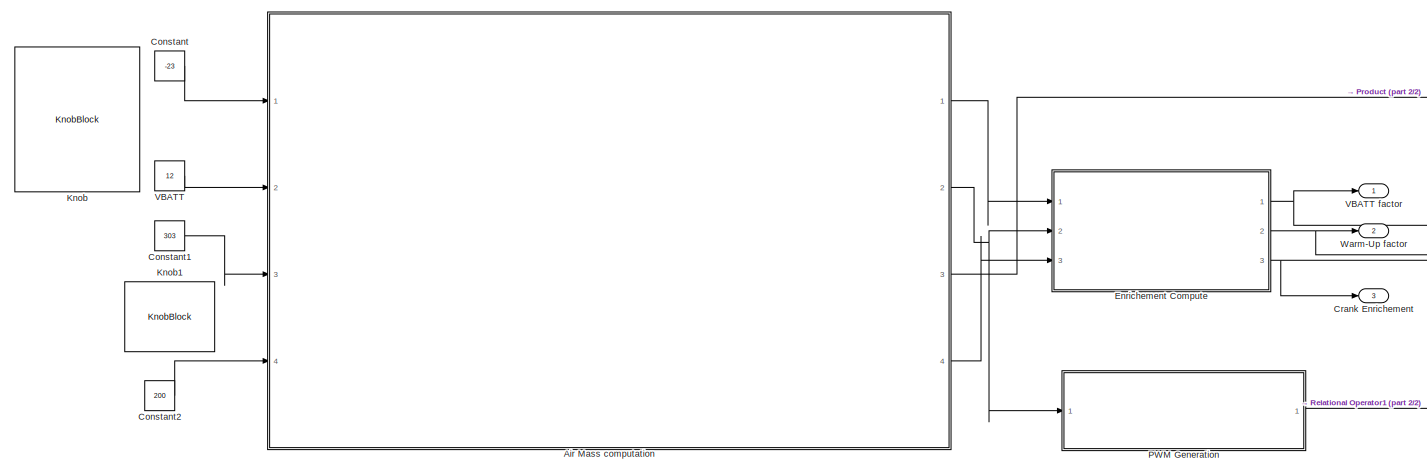
[diagram: root canvas - part 1/2, most of the canvas]
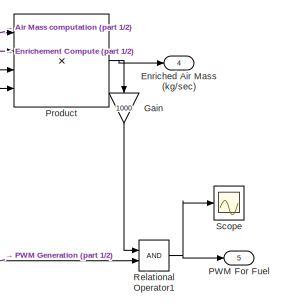
[diagram: root canvas - part 2/2, middle right region]
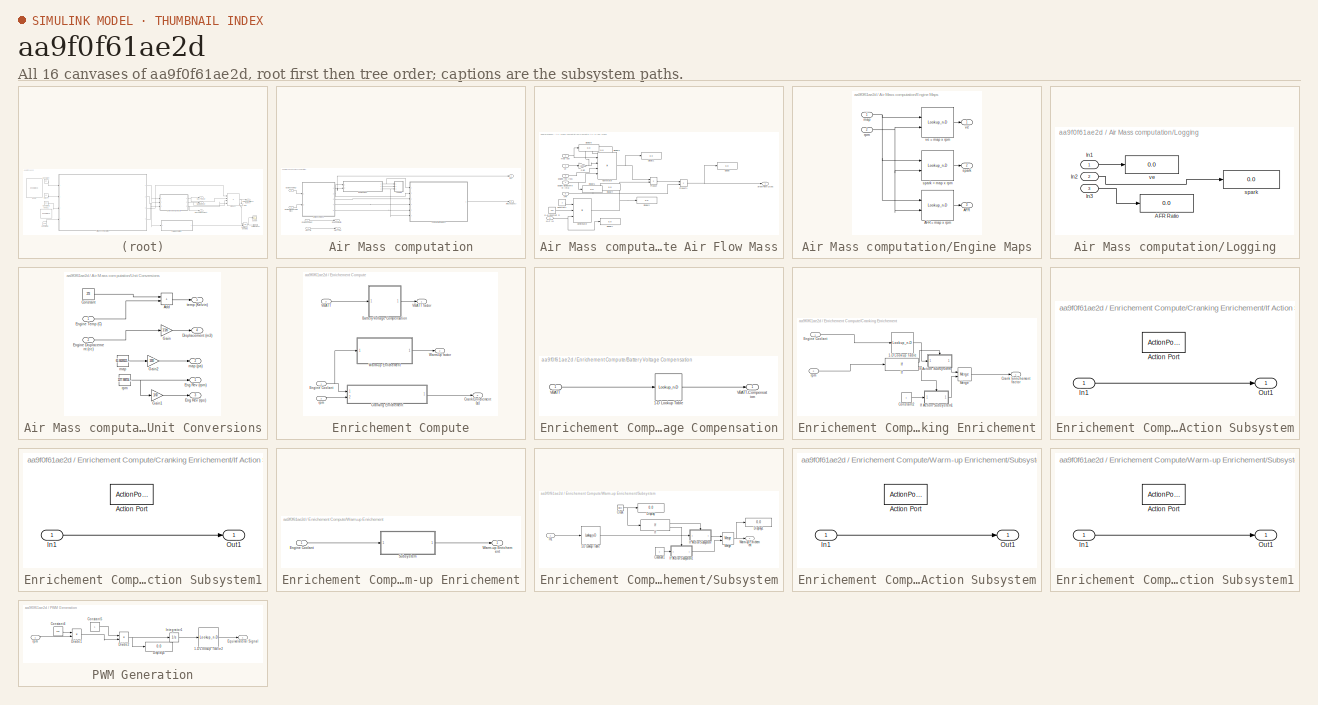
[diagram: thumbnail index - all 16 canvases of the model, root first then tree order]
MODEL slx_aa9f0f61ae2d
KIND model
CONFIG AbsTol = auto
CONFIG EnableMultiTasking = off
CONFIG FixedStep = 1
CONFIG MaxStep = 0.0001
CONFIG MinStep = auto
CONFIG PostLoadFcn = data1=xlsread('performancemaps','VE'); \nrpm1=data1(1,2:end); \nmap1=data1(2:end,1); \nve=data1(2:end,2:end);\ndata2=xlsread('performancemaps','Spark'); \nrpm2=data2(1,2:end); \nmap2=data2(2:end,1); \nspark=data2(2:end,2:end);\ndata3=xlsread('performancemaps','AFR'); \nrpm3=data3(1,2:end); \nmap3=data3(2:end,1); \nAFR=data3(2:end,2:end); 
CONFIG RelTol = 1e-3
CONFIG SampleTimeConstraint = Unconstrained
CONFIG Solver = VariableStepAuto
CONFIG SolverName = VariableStepAuto
CONFIG StartTime = 0.0
CONFIG StopTime = 2
BLOCK [SubSystem] Air Mass computation
  Ports = [4, 4]
  RequestExecContextInheritance = off
BLOCK [Outport] Air Mass computation/Air Mass (kg//sec)
  Port = 3
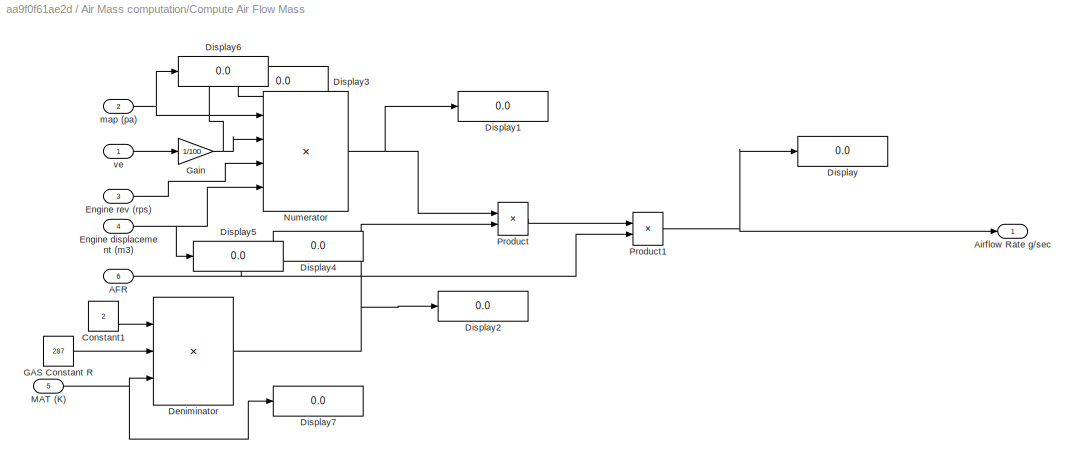
BLOCK [SubSystem] Air Mass computation/Compute Air Flow Mass
  Ports = [6, 1]
  RequestExecContextInheritance = off
BLOCK [Inport] Air Mass computation/Compute Air Flow Mass/AFR
  Port = 6
BLOCK [Outport] Air Mass computation/Compute Air Flow Mass/Airflow Rate g//sec
BLOCK [Constant] Air Mass computation/Compute Air Flow Mass/Constant1
  Value = 2
BLOCK [Product] Air Mass computation/Compute Air Flow Mass/Deniminator
  Inputs = ***
  Ports = [3, 1]
BLOCK [Display] Air Mass computation/Compute Air Flow Mass/Display
  Decimation = 1
  Ports = [1]
BLOCK [Display] Air Mass computation/Compute Air Flow Mass/Display1
  Decimation = 1
  Ports = [1]
BLOCK [Display] Air Mass computation/Compute Air Flow Mass/Display2
  Decimation = 1
  Ports = [1]
BLOCK [Display] Air Mass computation/Compute Air Flow Mass/Display3
  Decimation = 1
  Ports = [1]
BLOCK [Display] Air Mass computation/Compute Air Flow Mass/Display4
  Decimation = 1
  Ports = [1]
BLOCK [Display] Air Mass computation/Compute Air Flow Mass/Display5
  Decimation = 1
  Ports = [1]
BLOCK [Display] Air Mass computation/Compute Air Flow Mass/Display6
  Decimation = 1
  Ports = [1]
BLOCK [Display] Air Mass computation/Compute Air Flow Mass/Display7
  Decimation = 1
  Ports = [1]
BLOCK [Inport] Air Mass computation/Compute Air Flow Mass/Engine displacement (m3)
  Port = 4
BLOCK [Inport] Air Mass computation/Compute Air Flow Mass/Engine rev (rps)
  Port = 3
BLOCK [Constant] Air Mass computation/Compute Air Flow Mass/GAS Constant R
  Value = 287
BLOCK [Gain] Air Mass computation/Compute Air Flow Mass/Gain
  Gain = 1/100
BLOCK [Inport] Air Mass computation/Compute Air Flow Mass/MAT (K)
  Port = 5
BLOCK [Product] Air Mass computation/Compute Air Flow Mass/Numerator
  Inputs = ****
  Ports = [4, 1]
BLOCK [Product] Air Mass computation/Compute Air Flow Mass/Product
  Inputs = */
  Ports = [2, 1]
BLOCK [Product] Air Mass computation/Compute Air Flow Mass/Product1
  Inputs = */
  Ports = [2, 1]
BLOCK [Inport] Air Mass computation/Compute Air Flow Mass/map (pa)
  Port = 2
BLOCK [Inport] Air Mass computation/Compute Air Flow Mass/ve
BLOCK [Outport] Air Mass computation/Eng Coolant (C)
BLOCK [Inport] Air Mass computation/Engine Coolant
BLOCK [Inport] Air Mass computation/Engine Displacement(cc)
  Port = 4
BLOCK [SubSystem] Air Mass computation/Engine Maps
  Ports = [2, 3]
  RequestExecContextInheritance = off
BLOCK [Outport] Air Mass computation/Engine Maps/AFR
  Port = 3
BLOCK [Lookup_n-D] Air Mass computation/Engine Maps/AFR =  map x rpm
  BreakpointsForDimension1 = map1
  BreakpointsForDimension2 = rpm1
  InternalRulePriority = Speed
  Ports = [2, 1]
  RndMeth = Simplest
  Table = AFR
BLOCK [Inport] Air Mass computation/Engine Maps/map
BLOCK [Inport] Air Mass computation/Engine Maps/rpm
  Port = 2
BLOCK [Outport] Air Mass computation/Engine Maps/spark
  Port = 2
BLOCK [Lookup_n-D] Air Mass computation/Engine Maps/spark =  map x rpm
  BreakpointsForDimension1 = map1
  BreakpointsForDimension2 = rpm1
  InternalRulePriority = Speed
  Ports = [2, 1]
  RndMeth = Simplest
  Table = spark
BLOCK [Outport] Air Mass computation/Engine Maps/ve
BLOCK [Lookup_n-D] Air Mass computation/Engine Maps/ve =  map x rpm
  BreakpointsForDimension1 = map1
  BreakpointsForDimension2 = rpm1
  InternalRulePriority = Speed
  Ports = [2, 1]
  RndMeth = Simplest
  Table = ve
BLOCK [Inport] Air Mass computation/Engine Temp(C)
  Port = 3
BLOCK [SubSystem] Air Mass computation/Logging
  Ports = [3]
  RequestExecContextInheritance = off
BLOCK [Display] Air Mass computation/Logging/AFR Ratio
  Decimation = 1
  Ports = [1]
BLOCK [Inport] Air Mass computation/Logging/In1
BLOCK [Inport] Air Mass computation/Logging/In2
  Port = 2
BLOCK [Inport] Air Mass computation/Logging/In3
  Port = 3
BLOCK [Display] Air Mass computation/Logging/spark
  Decimation = 1
  Ports = [1]
BLOCK [Display] Air Mass computation/Logging/ve
  Decimation = 1
  Ports = [1]
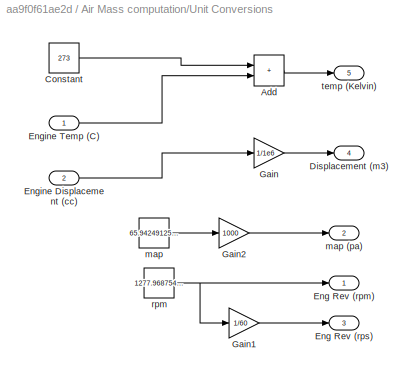
BLOCK [SubSystem] Air Mass computation/Unit Conversions
  Ports = [2, 5]
  RequestExecContextInheritance = off
BLOCK [Sum] Air Mass computation/Unit Conversions/Add
  IconShape = rectangular
  Ports = [2, 1]
BLOCK [Constant] Air Mass computation/Unit Conversions/Constant
  Value = 273
BLOCK [Outport] Air Mass computation/Unit Conversions/Displacement (m3)
  Port = 4
BLOCK [Outport] Air Mass computation/Unit Conversions/Eng Rev (rpm)
BLOCK [Outport] Air Mass computation/Unit Conversions/Eng Rev (rps)
  Port = 3
BLOCK [Inport] Air Mass computation/Unit Conversions/Engine Displacement (cc)
  Port = 2
BLOCK [Inport] Air Mass computation/Unit Conversions/Engine Temp (C)
BLOCK [Gain] Air Mass computation/Unit Conversions/Gain
  Gain = 1/1e6
BLOCK [Gain] Air Mass computation/Unit Conversions/Gain1
  Gain = 1/60
BLOCK [Gain] Air Mass computation/Unit Conversions/Gain2
  Gain = 1000
BLOCK [Constant] Air Mass computation/Unit Conversions/map
  Value = 65.9424912516276
BLOCK [Outport] Air Mass computation/Unit Conversions/map (pa)
  Port = 2
BLOCK [Constant] Air Mass computation/Unit Conversions/rpm
  Value = 1277.968754907615
BLOCK [Outport] Air Mass computation/Unit Conversions/temp (Kelvin)
  Port = 5
BLOCK [Inport] Air Mass computation/VBATT-in
  Port = 2
BLOCK [Outport] Air Mass computation/VBATT-out
  Port = 4
BLOCK [Outport] Air Mass computation/rpm
  Port = 2
BLOCK [Constant] Constant
  Value = -23
BLOCK [Constant] Constant1
  Value = 303
BLOCK [Constant] Constant2
  Value = 200
BLOCK [Outport] Crank Enrichement
  Port = 3
BLOCK [Outport] Enriched Air Mass (kg//sec) 
  Port = 4
BLOCK [SubSystem] Enrichement Compute
  Ports = [3, 3]
  RequestExecContextInheritance = off
BLOCK [SubSystem] Enrichement Compute/Battery Voltage Compensation
  Ports = [1, 1]
  RequestExecContextInheritance = off
BLOCK [Lookup_n-D] Enrichement Compute/Battery Voltage Compensation/1-D Lookup Table
  BreakpointsForDimension1 = [7,10,12,15]
  InternalRulePriority = Speed
  NumberOfTableDimensions = 1
  Ports = [1, 1]
  RndMeth = Simplest
  Table = [ 1.3,1.2, 1.0 ,0.9]
BLOCK [Inport] Enrichement Compute/Battery Voltage Compensation/VBATT
BLOCK [Outport] Enrichement Compute/Battery Voltage Compensation/VBATT-Compensation
BLOCK [Outport] Enrichement Compute/Crank Enrichement(g)
  Port = 3
BLOCK [SubSystem] Enrichement Compute/Cranking Enrichement
  Ports = [2, 1]
  RequestExecContextInheritance = off
BLOCK [Lookup_n-D] Enrichement Compute/Cranking Enrichement/1-D Lookup Table
  BreakpointsForDimension1 = [-40,-20,-5,15,35,50,70,90]
  InternalRulePriority = Speed
  NumberOfTableDimensions = 1
  Ports = [1, 1]
  RndMeth = Simplest
  Table = [1.4,1.25,1.15,1.1,1,1,1,1]
BLOCK [Constant] Enrichement Compute/Cranking Enrichement/Constant2
BLOCK [Outport] Enrichement Compute/Cranking Enrichement/Crank Enrichement factor
BLOCK [Inport] Enrichement Compute/Cranking Enrichement/Engine Coolant
BLOCK [If] Enrichement Compute/Cranking Enrichement/If
  IfExpression = u1 > 100 & u1 < 800
  Ports = [1, 2]
BLOCK [SubSystem] Enrichement Compute/Cranking Enrichement/If Action Subsystem
  Ports = [1, 1, 0, 0, 0, 0, 0, 1]
  RequestExecContextInheritance = off
  TreatAsAtomicUnit = on
BLOCK [ActionPort] Enrichement Compute/Cranking Enrichement/If Action Subsystem/Action Port
  ActionPortLabel = if(u1 > 100 & u1 < 800)
BLOCK [Inport] Enrichement Compute/Cranking Enrichement/If Action Subsystem/In1
BLOCK [Outport] Enrichement Compute/Cranking Enrichement/If Action Subsystem/Out1
BLOCK [SubSystem] Enrichement Compute/Cranking Enrichement/If Action Subsystem1
  Ports = [1, 1, 0, 0, 0, 0, 0, 1]
  RequestExecContextInheritance = off
  TreatAsAtomicUnit = on
BLOCK [ActionPort] Enrichement Compute/Cranking Enrichement/If Action Subsystem1/Action Port
  ActionPortLabel = else
BLOCK [Inport] Enrichement Compute/Cranking Enrichement/If Action Subsystem1/In1
BLOCK [Outport] Enrichement Compute/Cranking Enrichement/If Action Subsystem1/Out1
BLOCK [Merge] Enrichement Compute/Cranking Enrichement/Merge
  Ports = [2, 1]
BLOCK [Inport] Enrichement Compute/Cranking Enrichement/rpm
  Port = 2
BLOCK [Inport] Enrichement Compute/Engine Coolant
BLOCK [Inport] Enrichement Compute/VBATT
  Port = 3
BLOCK [Outport] Enrichement Compute/VBATT factor
BLOCK [Outport] Enrichement Compute/Warm-Up factor
  Port = 2
BLOCK [SubSystem] Enrichement Compute/Warm-up Enrichement
  Ports = [1, 1]
  RequestExecContextInheritance = off
BLOCK [Inport] Enrichement Compute/Warm-up Enrichement/Engine Coolant
BLOCK [SubSystem] Enrichement Compute/Warm-up Enrichement/Subsystem
  Ports = [1, 1]
  RequestExecContextInheritance = off
BLOCK [Lookup_n-D] Enrichement Compute/Warm-up Enrichement/Subsystem/1-D Lookup Table
  BreakpointsForDimension1 = [-40,-20,-5,15,35,50,100]
  InternalRulePriority = Speed
  NumberOfTableDimensions = 1
  Ports = [1, 1]
  RndMeth = Simplest
  Table = [1.6, 1.35,1.25,1.25,1.15,1,1]
BLOCK [Clock] Enrichement Compute/Warm-up Enrichement/Subsystem/Clock
  Decimation = 2
  DisplayTime = on
BLOCK [Constant] Enrichement Compute/Warm-up Enrichement/Subsystem/Constant1
BLOCK [Display] Enrichement Compute/Warm-up Enrichement/Subsystem/Display
  Decimation = 2
  Format = long
  Ports = [1]
BLOCK [Display] Enrichement Compute/Warm-up Enrichement/Subsystem/Display1
  Decimation = 2
  Format = long
  Ports = [1]
BLOCK [If] Enrichement Compute/Warm-up Enrichement/Subsystem/If
  IfExpression = u1 < 15000
  Ports = [1, 2]
BLOCK [SubSystem] Enrichement Compute/Warm-up Enrichement/Subsystem/If Action Subsystem
  Ports = [1, 1, 0, 0, 0, 0, 0, 1]
  RequestExecContextInheritance = off
  TreatAsAtomicUnit = on
BLOCK [ActionPort] Enrichement Compute/Warm-up Enrichement/Subsystem/If Action Subsystem/Action Port
  ActionPortLabel = if(u1 < 15000)
BLOCK [Inport] Enrichement Compute/Warm-up Enrichement/Subsystem/If Action Subsystem/In1
BLOCK [Outport] Enrichement Compute/Warm-up Enrichement/Subsystem/If Action Subsystem/Out1
BLOCK [SubSystem] Enrichement Compute/Warm-up Enrichement/Subsystem/If Action Subsystem1
  Ports = [1, 1, 0, 0, 0, 0, 0, 1]
  RequestExecContextInheritance = off
  TreatAsAtomicUnit = on
BLOCK [ActionPort] Enrichement Compute/Warm-up Enrichement/Subsystem/If Action Subsystem1/Action Port
  ActionPortLabel = else
BLOCK [Inport] Enrichement Compute/Warm-up Enrichement/Subsystem/If Action Subsystem1/In1
BLOCK [Outport] Enrichement Compute/Warm-up Enrichement/Subsystem/If Action Subsystem1/Out1
BLOCK [Inport] Enrichement Compute/Warm-up Enrichement/Subsystem/In1
BLOCK [Merge] Enrichement Compute/Warm-up Enrichement/Subsystem/Merge
  Ports = [2, 1]
BLOCK [Outport] Enrichement Compute/Warm-up Enrichement/Subsystem/Warm-up Enrichement
BLOCK [Outport] Enrichement Compute/Warm-up Enrichement/Warm-up Enrichement
BLOCK [Inport] Enrichement Compute/rpm
  Port = 2
BLOCK [Gain] Gain
  Gain = 1000
  NameLocation = left
BLOCK [KnobBlock] Knob
  ScaleMax = 10000
BLOCK [KnobBlock] Knob1
  ScaleMax = 101
  ScaleMin = 25
BLOCK [Outport] PWM For Fuel
  Port = 5
BLOCK [SubSystem] PWM Generation
  Ports = [1, 1]
  RequestExecContextInheritance = off
BLOCK [Lookup_n-D] PWM Generation/1-D Lookup Table2
  BreakpointsForDimension1 = [0,0.5,1]
  InternalRulePriority = Speed
  NumberOfTableDimensions = 1
  Ports = [1, 1]
  RndMeth = Simplest
  Table = [0,1,0]
BLOCK [Constant] PWM Generation/Constant4
  Value = 120
BLOCK [Constant] PWM Generation/Constant5
BLOCK [Display] PWM Generation/Display5
  Decimation = 1
  Ports = [1]
BLOCK [Product] PWM Generation/Divide1
  Inputs = */
  Ports = [2, 1]
BLOCK [Product] PWM Generation/Divide2
  Inputs = */
  Ports = [2, 1]
BLOCK [Outport] PWM Generation/Equivalateral Signal
BLOCK [Integrator] PWM Generation/Integrator1
  Ports = [1, 1]
  WrapState = on
  WrappedStateLowerValue = 0
  WrappedStateUpperValue = 1
BLOCK [Inport] PWM Generation/rpm
BLOCK [Product] Product
  Inputs = 4
  Ports = [4, 1]
BLOCK [RelationalOperator] Relational Operator1
  InputSameDT = off
  OutDataTypeStr = boolean
  Ports = [2, 1]
  RndMeth = Simplest
BLOCK [Scope] Scope
  Floating = off
  NumInputPorts = 1
  Ports = [1]
  ScopeSpecificationString = Simulink.scopes.TimeScopeBlockCfg('CurrentConfiguration', extmgr.ConfigurationSet(extmgr.Configuration('Core','General UI',true),extmgr.Configuration('Core','Source UI',true),extmgr.Configuration('Sources','WiredSimulink',true,'DataLoggingVariableName','ScopeData1'),extmgr.Configuration('Visuals','Time Domain',true,'SerializedDisplays',{struct('MinYLimReal','0.9999999924','MaxYLimReal','1.00000000...<+1511ch>
BLOCK [Constant] VBATT
  Value = 12
BLOCK [Outport] VBATT factor
BLOCK [Outport] Warm-Up factor
  Port = 2
NET Air Mass computation/Compute Air Flow Mass/AFR:1 -> Air Mass computation/Compute Air Flow Mass/Display4:1, Air Mass computation/Compute Air Flow Mass/Product1:2
LINE Air Mass computation/Compute Air Flow Mass/Constant1:1 -> Air Mass computation/Compute Air Flow Mass/Deniminator:1
NET Air Mass computation/Compute Air Flow Mass/Deniminator:1 -> Air Mass computation/Compute Air Flow Mass/Display2:1, Air Mass computation/Compute Air Flow Mass/Product:2
NET Air Mass computation/Compute Air Flow Mass/Engine displacement (m3):1 -> Air Mass computation/Compute Air Flow Mass/Display5:1, Air Mass computation/Compute Air Flow Mass/Numerator:4
LINE Air Mass computation/Compute Air Flow Mass/Engine rev (rps):1 -> Air Mass computation/Compute Air Flow Mass/Numerator:3
LINE Air Mass computation/Compute Air Flow Mass/GAS Constant R:1 -> Air Mass computation/Compute Air Flow Mass/Deniminator:2
NET Air Mass computation/Compute Air Flow Mass/Gain:1 -> Air Mass computation/Compute Air Flow Mass/Display3:1, Air Mass computation/Compute Air Flow Mass/Numerator:2
NET Air Mass computation/Compute Air Flow Mass/MAT (K):1 -> Air Mass computation/Compute Air Flow Mass/Deniminator:3, Air Mass computation/Compute Air Flow Mass/Display7:1
NET Air Mass computation/Compute Air Flow Mass/Numerator:1 -> Air Mass computation/Compute Air Flow Mass/Display1:1, Air Mass computation/Compute Air Flow Mass/Product:1
NET Air Mass computation/Compute Air Flow Mass/Product1:1 -> Air Mass computation/Compute Air Flow Mass/Airflow Rate g//sec:1, Air Mass computation/Compute Air Flow Mass/Display:1
LINE Air Mass computation/Compute Air Flow Mass/Product:1 -> Air Mass computation/Compute Air Flow Mass/Product1:1
NET Air Mass computation/Compute Air Flow Mass/map (pa):1 -> Air Mass computation/Compute Air Flow Mass/Display6:1, Air Mass computation/Compute Air Flow Mass/Numerator:1
LINE Air Mass computation/Compute Air Flow Mass/ve:1 -> Air Mass computation/Compute Air Flow Mass/Gain:1
LINE Air Mass computation/Compute Air Flow Mass:1 -> Air Mass computation/Air Mass (kg//sec):1
LINE Air Mass computation/Engine Coolant:1 -> Air Mass computation/Eng Coolant (C):1
LINE Air Mass computation/Engine Displacement(cc):1 -> Air Mass computation/Unit Conversions:2
LINE Air Mass computation/Engine Maps/AFR =  map x rpm:1 -> Air Mass computation/Engine Maps/AFR:1
NET Air Mass computation/Engine Maps/map:1 -> Air Mass computation/Engine Maps/AFR =  map x rpm:1, Air Mass computation/Engine Maps/spark =  map x rpm:1, Air Mass computation/Engine Maps/ve =  map x rpm:1
NET Air Mass computation/Engine Maps/rpm:1 -> Air Mass computation/Engine Maps/AFR =  map x rpm:2, Air Mass computation/Engine Maps/spark =  map x rpm:2, Air Mass computation/Engine Maps/ve =  map x rpm:2
LINE Air Mass computation/Engine Maps/spark =  map x rpm:1 -> Air Mass computation/Engine Maps/spark:1
LINE Air Mass computation/Engine Maps/ve =  map x rpm:1 -> Air Mass computation/Engine Maps/ve:1
NET Air Mass computation/Engine Maps:1 -> Air Mass computation/Compute Air Flow Mass:1, Air Mass computation/Logging:1
LINE Air Mass computation/Engine Maps:2 -> Air Mass computation/Logging:2
NET Air Mass computation/Engine Maps:3 -> Air Mass computation/Compute Air Flow Mass:6, Air Mass computation/Logging:3
LINE Air Mass computation/Engine Temp(C):1 -> Air Mass computation/Unit Conversions:1
LINE Air Mass computation/Logging/In1:1 -> Air Mass computation/Logging/ve:1
LINE Air Mass computation/Logging/In2:1 -> Air Mass computation/Logging/spark:1
LINE Air Mass computation/Logging/In3:1 -> Air Mass computation/Logging/AFR Ratio:1
LINE Air Mass computation/Unit Conversions/Add:1 -> Air Mass computation/Unit Conversions/temp (Kelvin):1
LINE Air Mass computation/Unit Conversions/Constant:1 -> Air Mass computation/Unit Conversions/Add:1
LINE Air Mass computation/Unit Conversions/Engine Displacement (cc):1 -> Air Mass computation/Unit Conversions/Gain:1
LINE Air Mass computation/Unit Conversions/Engine Temp (C):1 -> Air Mass computation/Unit Conversions/Add:2
LINE Air Mass computation/Unit Conversions/Gain1:1 -> Air Mass computation/Unit Conversions/Eng Rev (rps):1
LINE Air Mass computation/Unit Conversions/Gain2:1 -> Air Mass computation/Unit Conversions/map (pa):1
LINE Air Mass computation/Unit Conversions/Gain:1 -> Air Mass computation/Unit Conversions/Displacement (m3):1
LINE Air Mass computation/Unit Conversions/map:1 -> Air Mass computation/Unit Conversions/Gain2:1
NET Air Mass computation/Unit Conversions/rpm:1 -> Air Mass computation/Unit Conversions/Eng Rev (rpm):1, Air Mass computation/Unit Conversions/Gain1:1
NET Air Mass computation/Unit Conversions:1 -> Air Mass computation/Engine Maps:2, Air Mass computation/rpm:1
NET Air Mass computation/Unit Conversions:2 -> Air Mass computation/Compute Air Flow Mass:2, Air Mass computation/Engine Maps:1
LINE Air Mass computation/Unit Conversions:3 -> Air Mass computation/Compute Air Flow Mass:3
LINE Air Mass computation/Unit Conversions:4 -> Air Mass computation/Compute Air Flow Mass:4
LINE Air Mass computation/Unit Conversions:5 -> Air Mass computation/Compute Air Flow Mass:5
LINE Air Mass computation/VBATT-in:1 -> Air Mass computation/VBATT-out:1
LINE Air Mass computation:1 -> Enrichement Compute:1
NET Air Mass computation:2 -> Enrichement Compute:2, PWM Generation:1
LINE Air Mass computation:3 -> Product:1
LINE Air Mass computation:4 -> Enrichement Compute:3
LINE Constant1:1 -> Air Mass computation:3
LINE Constant2:1 -> Air Mass computation:4
LINE Constant:1 -> Air Mass computation:1
LINE Enrichement Compute/Battery Voltage Compensation/1-D Lookup Table:1 -> Enrichement Compute/Battery Voltage Compensation/VBATT-Compensation:1
LINE Enrichement Compute/Battery Voltage Compensation/VBATT:1 -> Enrichement Compute/Battery Voltage Compensation/1-D Lookup Table:1
LINE Enrichement Compute/Battery Voltage Compensation:1 -> Enrichement Compute/VBATT factor:1
LINE Enrichement Compute/Cranking Enrichement/1-D Lookup Table:1 -> Enrichement Compute/Cranking Enrichement/If Action Subsystem:1
LINE Enrichement Compute/Cranking Enrichement/Constant2:1 -> Enrichement Compute/Cranking Enrichement/If Action Subsystem1:1
LINE Enrichement Compute/Cranking Enrichement/Engine Coolant:1 -> Enrichement Compute/Cranking Enrichement/1-D Lookup Table:1
LINE Enrichement Compute/Cranking Enrichement/If Action Subsystem/In1:1 -> Enrichement Compute/Cranking Enrichement/If Action Subsystem/Out1:1
LINE Enrichement Compute/Cranking Enrichement/If Action Subsystem1/In1:1 -> Enrichement Compute/Cranking Enrichement/If Action Subsystem1/Out1:1
LINE Enrichement Compute/Cranking Enrichement/If Action Subsystem1:1 -> Enrichement Compute/Cranking Enrichement/Merge:2
LINE Enrichement Compute/Cranking Enrichement/If Action Subsystem:1 -> Enrichement Compute/Cranking Enrichement/Merge:1
LINE Enrichement Compute/Cranking Enrichement/If:1 -> Enrichement Compute/Cranking Enrichement/If Action Subsystem:ifaction
LINE Enrichement Compute/Cranking Enrichement/If:2 -> Enrichement Compute/Cranking Enrichement/If Action Subsystem1:ifaction
LINE Enrichement Compute/Cranking Enrichement/Merge:1 -> Enrichement Compute/Cranking Enrichement/Crank Enrichement factor:1
LINE Enrichement Compute/Cranking Enrichement/rpm:1 -> Enrichement Compute/Cranking Enrichement/If:1
LINE Enrichement Compute/Cranking Enrichement:1 -> Enrichement Compute/Crank Enrichement(g):1
NET Enrichement Compute/Engine Coolant:1 -> Enrichement Compute/Cranking Enrichement:1, Enrichement Compute/Warm-up Enrichement:1
LINE Enrichement Compute/VBATT:1 -> Enrichement Compute/Battery Voltage Compensation:1
LINE Enrichement Compute/Warm-up Enrichement/Engine Coolant:1 -> Enrichement Compute/Warm-up Enrichement/Subsystem:1
LINE Enrichement Compute/Warm-up Enrichement/Subsystem/1-D Lookup Table:1 -> Enrichement Compute/Warm-up Enrichement/Subsystem/If Action Subsystem:1
NET Enrichement Compute/Warm-up Enrichement/Subsystem/Clock:1 -> Enrichement Compute/Warm-up Enrichement/Subsystem/Display:1, Enrichement Compute/Warm-up Enrichement/Subsystem/If:1
LINE Enrichement Compute/Warm-up Enrichement/Subsystem/Constant1:1 -> Enrichement Compute/Warm-up Enrichement/Subsystem/If Action Subsystem1:1
LINE Enrichement Compute/Warm-up Enrichement/Subsystem/If Action Subsystem/In1:1 -> Enrichement Compute/Warm-up Enrichement/Subsystem/If Action Subsystem/Out1:1
LINE Enrichement Compute/Warm-up Enrichement/Subsystem/If Action Subsystem1/In1:1 -> Enrichement Compute/Warm-up Enrichement/Subsystem/If Action Subsystem1/Out1:1
LINE Enrichement Compute/Warm-up Enrichement/Subsystem/If Action Subsystem1:1 -> Enrichement Compute/Warm-up Enrichement/Subsystem/Merge:2
LINE Enrichement Compute/Warm-up Enrichement/Subsystem/If Action Subsystem:1 -> Enrichement Compute/Warm-up Enrichement/Subsystem/Merge:1
LINE Enrichement Compute/Warm-up Enrichement/Subsystem/If:1 -> Enrichement Compute/Warm-up Enrichement/Subsystem/If Action Subsystem:ifaction
LINE Enrichement Compute/Warm-up Enrichement/Subsystem/If:2 -> Enrichement Compute/Warm-up Enrichement/Subsystem/If Action Subsystem1:ifaction
LINE Enrichement Compute/Warm-up Enrichement/Subsystem/In1:1 -> Enrichement Compute/Warm-up Enrichement/Subsystem/1-D Lookup Table:1
NET Enrichement Compute/Warm-up Enrichement/Subsystem/Merge:1 -> Enrichement Compute/Warm-up Enrichement/Subsystem/Display1:1, Enrichement Compute/Warm-up Enrichement/Subsystem/Warm-up Enrichement:1
LINE Enrichement Compute/Warm-up Enrichement/Subsystem:1 -> Enrichement Compute/Warm-up Enrichement/Warm-up Enrichement:1
LINE Enrichement Compute/Warm-up Enrichement:1 -> Enrichement Compute/Warm-Up factor:1
LINE Enrichement Compute/rpm:1 -> Enrichement Compute/Cranking Enrichement:2
NET Enrichement Compute:1 -> Product:2, VBATT factor:1
NET Enrichement Compute:2 -> Product:3, Warm-Up factor:1
NET Enrichement Compute:3 -> Crank Enrichement:1, Product:4
LINE Gain:1 -> Relational Operator1:1
LINE PWM Generation/1-D Lookup Table2:1 -> PWM Generation/Equivalateral Signal:1
LINE PWM Generation/Constant4:1 -> PWM Generation/Divide1:1
LINE PWM Generation/Constant5:1 -> PWM Generation/Divide2:1
LINE PWM Generation/Divide1:1 -> PWM Generation/Divide2:2
NET PWM Generation/Divide2:1 -> PWM Generation/Display5:1, PWM Generation/Integrator1:1
LINE PWM Generation/Integrator1:1 -> PWM Generation/1-D Lookup Table2:1
LINE PWM Generation/rpm:1 -> PWM Generation/Divide1:2
LINE PWM Generation:1 -> Relational Operator1:2
NET Product:1 -> Enriched Air Mass (kg//sec) :1, Gain:1
NET Relational Operator1:1 -> PWM For Fuel:1, Scope:1
LINE VBATT:1 -> Air Mass computation:2
note: NET lines group one-source signal fan-out (src -> all destinations, sorted); 1:1 wires keep LINE
